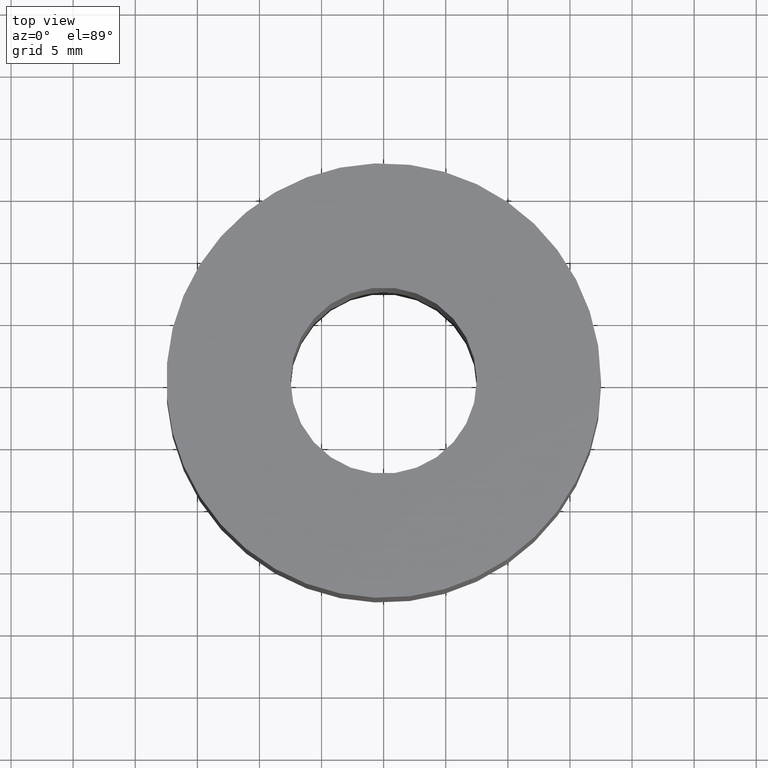
[diagram: clean part render]
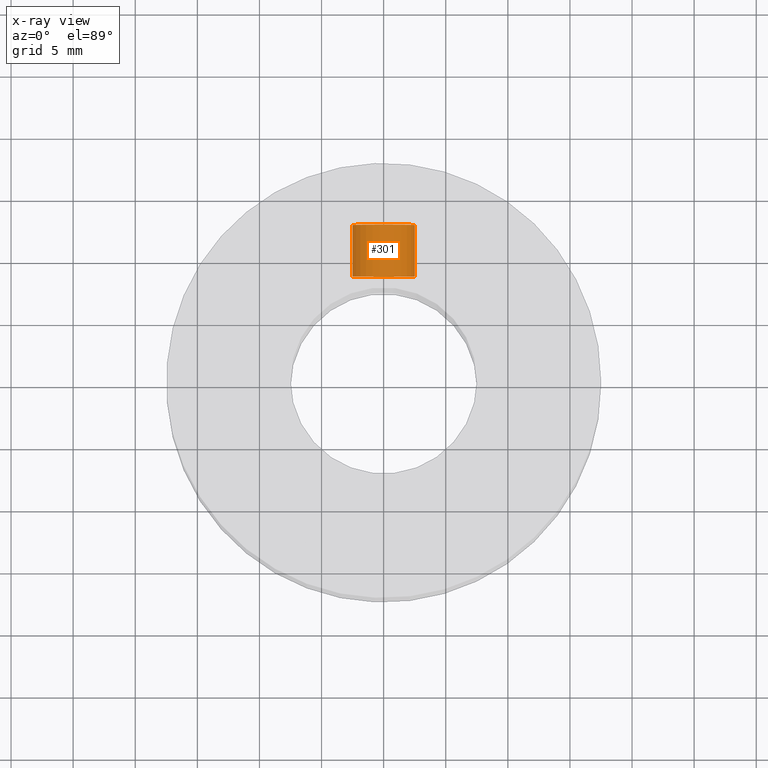
[diagram: x-ray — body ghosted, one internal face saturated and labeled with its STEP entity id]
A machine part, top view, then the same camera in x-ray: the body is ghosted and one INTERNAL B-rep face — a face not visible from any outside direction — is saturated and labeled: STEP entity #301.
In plain terms, the highlighted cylindrical surface (bore or boss wall) has radius 2.5 mm, axis along (0, 1, 0).
Its self-contained STEP definition (entity closure, byte-faithful):
#301 = ADVANCED_FACE( '', ( #390, #391 ), #392, .T. );
#390 = FACE_OUTER_BOUND( '', #482, .T. );
#391 = FACE_OUTER_BOUND( '', #483, .T. );
#392 = CYLINDRICAL_SURFACE( '', #484, 2.50000000000000 );
#482 = EDGE_LOOP( '', ( #694 ) );
#483 = EDGE_LOOP( '', ( #695 ) );
#484 = AXIS2_PLACEMENT_3D( '', #696, #697, #698 );
#694 = ORIENTED_EDGE( '', *, *, #740, .T. );
#695 = ORIENTED_EDGE( '', *, *, #761, .F. );
#696 = CARTESIAN_POINT( '', ( 4.53392180753521E-016, 7.60445622475296, -27.0000000000000 ) );
#697 = DIRECTION( '', ( 6.12323399573677E-017, 1.00000000000000, -0.000000000000000 ) );
#698 = DIRECTION( '', ( 1.00000000000000, -6.12323399573677E-017, 0.000000000000000 ) );
#740 = EDGE_CURVE( '', #826, #826, #827, .T. );
#761 = EDGE_CURVE( '', #860, #860, #861, .T. );
#826 = VERTEX_POINT( '', #1192 );
#827 = CIRCLE( '', #1193, 2.50000000000000 );
#860 = VERTEX_POINT( '', #1268 );
#861 = CIRCLE( '', #1269, 2.50000000000000 );
#1192 = CARTESIAN_POINT( '', ( 2.50000000000000, 12.9794562247530, -27.0000000000000 ) );
#1193 = AXIS2_PLACEMENT_3D( '', #1321, #1322, #1323 );
#1268 = CARTESIAN_POINT( '', ( 2.50000000000000, 8.85445622475297, -27.0000000000000 ) );
#1269 = AXIS2_PLACEMENT_3D( '', #1339, #1340, #1341 );
#1321 = CARTESIAN_POINT( '', ( 7.82516008024372E-016, 12.9794562247530, -27.0000000000000 ) );
#1322 = DIRECTION( '', ( -6.12323399573677E-017, -1.00000000000000, 0.000000000000000 ) );
#1323 = DIRECTION( '', ( 1.00000000000000, -6.12323399573677E-017, 0.000000000000000 ) );
#1339 = CARTESIAN_POINT( '', ( 5.29932605700230E-016, 8.85445622475297, -27.0000000000000 ) );
#1340 = DIRECTION( '', ( -6.12323399573677E-017, -1.00000000000000, 0.000000000000000 ) );
#1341 = DIRECTION( '', ( 1.00000000000000, -6.12323399573677E-017, 0.000000000000000 ) );